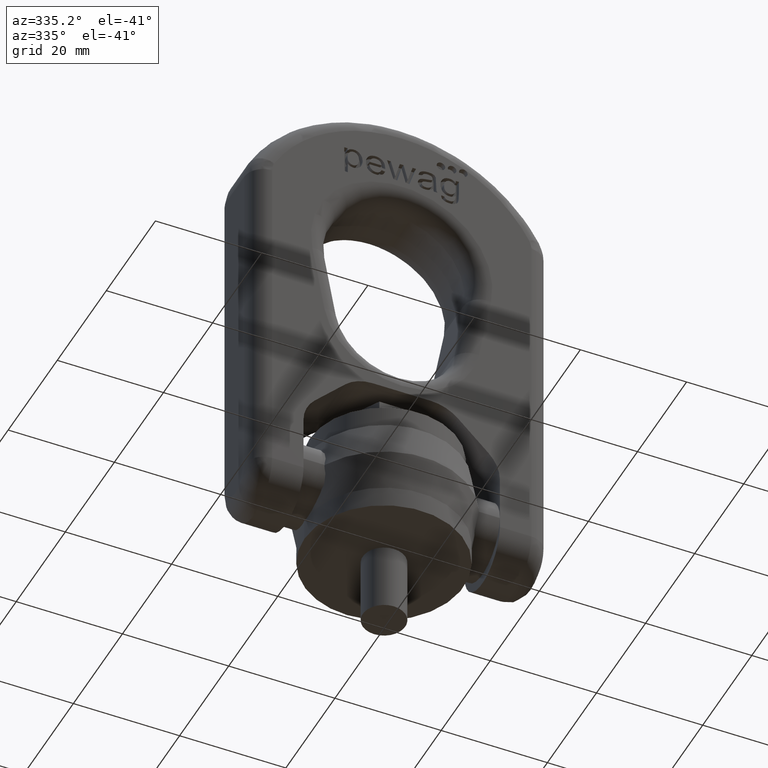
[diagram: clean part render]
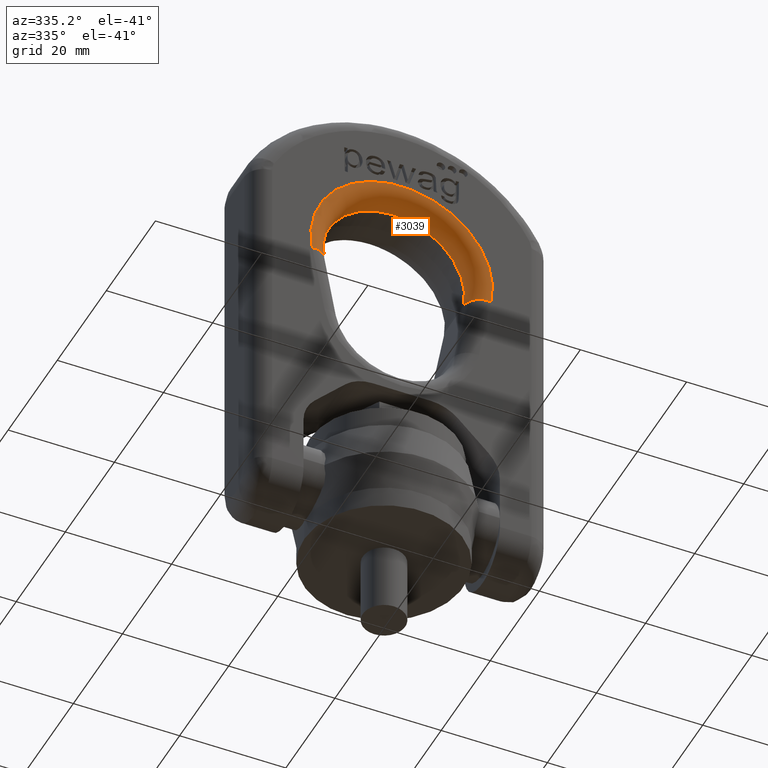
[diagram: same view with one face highlighted and labeled with its STEP entity id]
A machine part, auxiliary view. The second image highlights one B-rep face of the part: STEP entity #3039.
In plain terms, the highlighted toroidal blend (fillet) surface has major radius 17.1 mm and minor (blend) radius 3.6 mm.
Its self-contained STEP definition (entity closure, byte-faithful):
#206=TOROIDAL_SURFACE('',#6063,17.1,3.6);
#2664=FACE_OUTER_BOUND('',#3432,.T.);
#3039=ADVANCED_FACE('',(#2664),#206,.T.);
#3432=EDGE_LOOP('',(#4693,#4694,#4695,#4696));
#4693=ORIENTED_EDGE('',*,*,#5747,.T.);
#4694=ORIENTED_EDGE('',*,*,#5356,.F.);
#4695=ORIENTED_EDGE('',*,*,#5748,.T.);
#4696=ORIENTED_EDGE('',*,*,#5177,.F.);
#4744=VERTEX_POINT('',#7071);
#4745=VERTEX_POINT('',#7073);
#4914=VERTEX_POINT('',#7727);
#4916=VERTEX_POINT('',#7733);
#5177=EDGE_CURVE('',#4744,#4745,#5763,.T.);
#5356=EDGE_CURVE('',#4916,#4914,#5788,.T.);
#5747=EDGE_CURVE('',#4744,#4914,#5825,.T.);
#5748=EDGE_CURVE('',#4916,#4745,#5826,.T.);
#5763=CIRCLE('',#5869,17.1);
#5788=CIRCLE('',#5897,13.5);
#5825=CIRCLE('',#6059,3.6);
#5826=CIRCLE('',#6061,3.6);
#5869=AXIS2_PLACEMENT_3D('',#7072,#6194,#6195);
#5897=AXIS2_PLACEMENT_3D('',#7734,#6336,#6337);
#6059=AXIS2_PLACEMENT_3D('',#9840,#6926,#6927);
#6061=AXIS2_PLACEMENT_3D('',#9842,#6930,#6931);
#6063=AXIS2_PLACEMENT_3D('',#9844,#6934,#6935);
#6194=DIRECTION('',(0.,1.,0.));
#6195=DIRECTION('',(0.,0.,-1.));
#6336=DIRECTION('',(0.,-1.,0.));
#6337=DIRECTION('',(0.,0.,-1.));
#6926=DIRECTION('',(-0.173648177666929,0.,0.984807753012208));
#6927=DIRECTION('',(0.984807753012208,0.,0.173648177666929));
#6930=DIRECTION('',(0.173648177666931,1.89818792052694E-15,0.984807753012208));
#6931=DIRECTION('',(0.984807753012208,0.,-0.173648177666931));
#6934=DIRECTION('',(0.,-1.,0.));
#6935=DIRECTION('',(0.,0.,-1.));
#7071=CARTESIAN_POINT('',(-16.8402125765088,-7.2,59.5306161618955));
#7072=CARTESIAN_POINT('',(0.,-7.2,62.5));
#7073=CARTESIAN_POINT('',(16.8402125765088,-7.2,59.5306161618955));
#7727=CARTESIAN_POINT('',(-13.2949046656648,-3.6,60.1557496014964));
#7733=CARTESIAN_POINT('',(13.2949046656648,-3.6,60.1557496014964));
#7734=CARTESIAN_POINT('',(0.,-3.6,62.5));
#9840=CARTESIAN_POINT('',(-16.8402125765088,-3.6,59.5306161618955));
#9842=CARTESIAN_POINT('',(16.8402125765088,-3.6,59.5306161618955));
#9844=CARTESIAN_POINT('',(0.,-3.6,62.5));